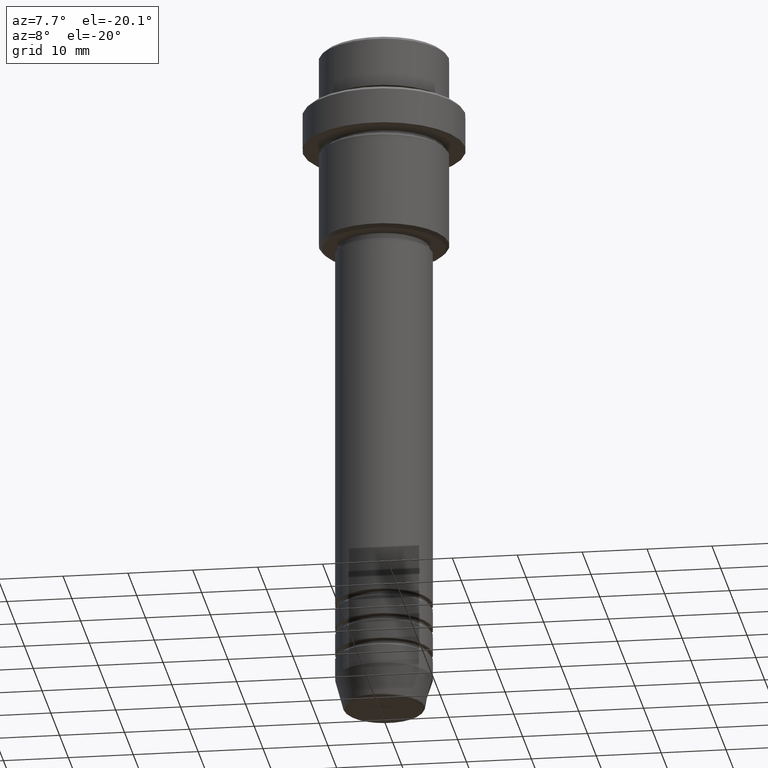
[diagram: clean part render]
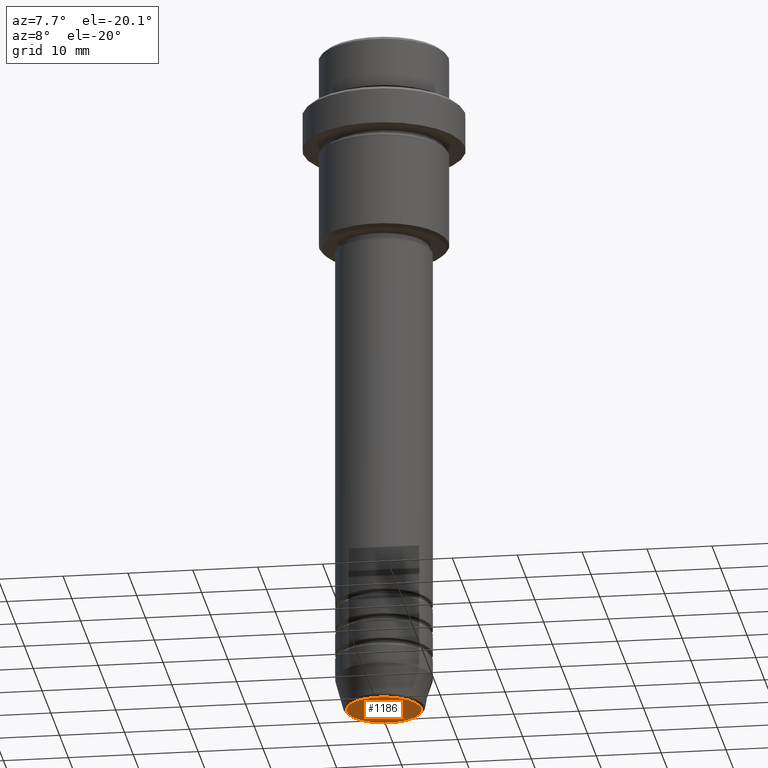
[diagram: same view with one face highlighted and labeled with its STEP entity id]
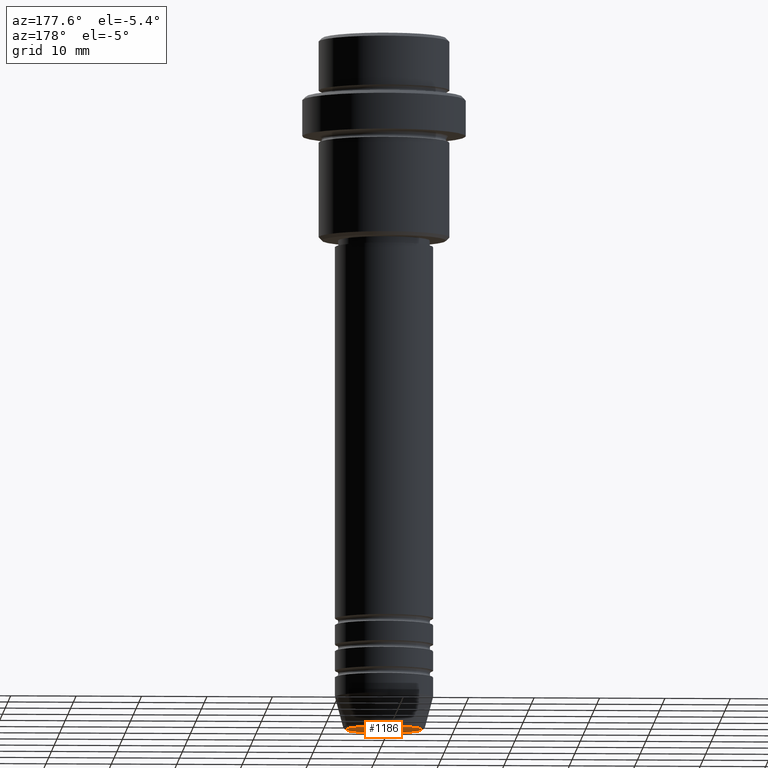
[diagram: same view with one face highlighted and labeled with its STEP entity id]
A machine part, auxiliary view. The second image highlights one B-rep face of the part: STEP entity #1186.
A second angle (auxiliary view) of the same face is appended — the face is thin or edge-on in the first view.
In plain terms, the highlighted planar face has unit normal (0, -0, 1).
Its self-contained STEP definition (entity closure, byte-faithful):
#163 = VERTEX_POINT ( 'NONE', #851 ) ;
#220 = VERTEX_POINT ( 'NONE', #1132 ) ;
#231 = ORIENTED_EDGE ( 'NONE', *, *, #1130, .T. ) ;
#242 = DIRECTION ( 'NONE',  ( 0.000000000000000000, 0.000000000000000000, -1.000000000000000000 ) ) ;
#248 = EDGE_LOOP ( 'NONE', ( #231, #757 ) ) ;
#253 = CIRCLE ( 'NONE', #1061, 5.776590543854905668 ) ;
#353 = CIRCLE ( 'NONE', #1260, 5.776590543854905668 ) ;
#486 = FACE_OUTER_BOUND ( 'NONE', #248, .T. ) ;
#492 = CARTESIAN_POINT ( 'NONE',  ( 0.000000000000000000, 0.000000000000000000, -106.0000000000000000 ) ) ;
#521 = AXIS2_PLACEMENT_3D ( 'NONE', #492, #1247, #945 ) ;
#528 = DIRECTION ( 'NONE',  ( 1.000000000000000000, 0.000000000000000000, 0.000000000000000000 ) ) ;
#683 = DIRECTION ( 'NONE',  ( 1.000000000000000000, 0.000000000000000000, 0.000000000000000000 ) ) ;
#755 = CARTESIAN_POINT ( 'NONE',  ( 0.000000000000000000, 0.000000000000000000, -106.0000000000000000 ) ) ;
#757 = ORIENTED_EDGE ( 'NONE', *, *, #976, .T. ) ;
#851 = CARTESIAN_POINT ( 'NONE',  ( 5.776590543854905668, 0.000000000000000000, -106.0000000000000000 ) ) ;
#869 = DIRECTION ( 'NONE',  ( 0.000000000000000000, 0.000000000000000000, -1.000000000000000000 ) ) ;
#945 = DIRECTION ( 'NONE',  ( 1.000000000000000000, 0.000000000000000000, 0.000000000000000000 ) ) ;
#950 = PLANE ( 'NONE',  #521 ) ;
#976 = EDGE_CURVE ( 'NONE', #220, #163, #353, .T. ) ;
#1061 = AXIS2_PLACEMENT_3D ( 'NONE', #1228, #242, #683 ) ;
#1130 = EDGE_CURVE ( 'NONE', #163, #220, #253, .T. ) ;
#1132 = CARTESIAN_POINT ( 'NONE',  ( -5.776590543854905668, 7.370012612361445601E-16, -106.0000000000000000 ) ) ;
#1186 = ADVANCED_FACE ( 'NONE', ( #486 ), #950, .F. ) ;
#1228 = CARTESIAN_POINT ( 'NONE',  ( 0.000000000000000000, 0.000000000000000000, -106.0000000000000000 ) ) ;
#1247 = DIRECTION ( 'NONE',  ( 0.000000000000000000, -0.000000000000000000, 1.000000000000000000 ) ) ;
#1260 = AXIS2_PLACEMENT_3D ( 'NONE', #755, #869, #528 ) ;